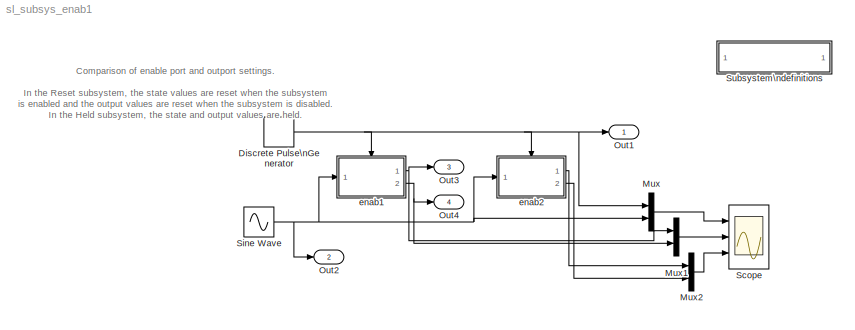
MODEL sl_subsys_enab1
KIND model
BLOCK [SubSystem]  Subsystem\ndefinitions
  MaskDisplay = disp('Subsystem\\ndefinitions')\n\n
  MaskIconFrame = on
  MaskIconOpaque = on
  MaskIconRotate = none
  MaskIconUnits = autoscale
  MinAlgLoopOccurrences = off
  OpenFcn = helpview([matlabroot,'/toolbox/simulink/simdemos/sl_subsys_definitions.html']);
  Ports = []
  PropExecContextAcrossSSBoundary = on
  RTWSystemCode = Auto
  TreatAsAtomicUnit = off
BLOCK [DiscretePulseGenerator] Discrete Pulse\nGenerator
  Period = 20
  Ports = [0, 1]
  PulseWidth = 10
  SampleTime = .25
BLOCK [Mux] Mux
  DisplayOption = bar
  Inputs = 2
  Ports = [2, 1]
BLOCK [Mux] Mux1
  DisplayOption = bar
  Inputs = 2
  Ports = [2, 1]
BLOCK [Mux] Mux2
  DisplayOption = bar
  Inputs = 2
  Ports = [2, 1]
BLOCK [Outport] Out1
  IconDisplay = Port number
BLOCK [Outport] Out2
  IconDisplay = Port number
  Port = 2
BLOCK [Outport] Out3
  IconDisplay = Port number
  Port = 3
BLOCK [Outport] Out4
  IconDisplay = Port number
  Port = 4
BLOCK [Scope] Scope
  DataFormat = StructureWithTime
  NumInputPorts = 3
  Ports = [3]
  TimeRange = 25
  YMax = 5~5~5
  YMin = -5~-5~-5
BLOCK [Sin] Sine Wave
  Amplitude = 2
  Ports = [0, 1]
  SampleTime = .25
  Samples = 20
  SineType = Sample based
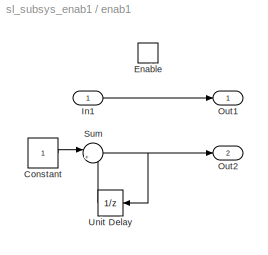
BLOCK [SubSystem] enab1
  MinAlgLoopOccurrences = off
  Ports = [1, 2, 1]
  PropExecContextAcrossSSBoundary = on
  RTWSystemCode = Auto
  TreatAsAtomicUnit = on
BLOCK [Constant] enab1/Constant
BLOCK [EnablePort] enab1/Enable
  AttributesFormatString = States when enabling = %<StatesWhenEnabling>
  Ports = []
  StatesWhenEnabling = reset
BLOCK [Inport] enab1/In1
  IconDisplay = Port number
  LatchInput = off
  Port = 1
BLOCK [Outport] enab1/Out1
  AttributesFormatString = IC=%<InitialOutput>\\nOutput when disabled=%<OutputWhenDisabled>
  IconDisplay = Port number
  InitialOutput = 5
  OutputWhenDisabled = reset
BLOCK [Outport] enab1/Out2
  AttributesFormatString = IC = %<InitialOutput>\\nOutput when disabled = %<OutputWhenDisabled>
  IconDisplay = Port number
  Port = 2
BLOCK [Sum] enab1/Sum
  IconShape = round
  Inputs = |++
  Ports = [2, 1]
BLOCK [UnitDelay] enab1/Unit Delay
  SampleTime = .25
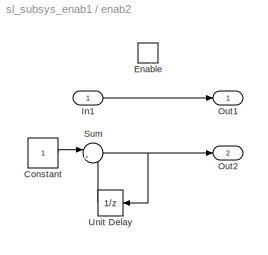
BLOCK [SubSystem] enab2
  MinAlgLoopOccurrences = off
  Ports = [1, 2, 1]
  PropExecContextAcrossSSBoundary = on
  RTWSystemCode = Auto
  TreatAsAtomicUnit = on
BLOCK [Constant] enab2/Constant
BLOCK [EnablePort] enab2/Enable
  AttributesFormatString = States when enabling = %<StatesWhenEnabling>
  Ports = []
BLOCK [Inport] enab2/In1
  IconDisplay = Port number
  LatchInput = off
  Port = 1
BLOCK [Outport] enab2/Out1
  AttributesFormatString = IC=%<InitialOutput>\\nOutput when disabled=%<OutputWhenDisabled>
  IconDisplay = Port number
  InitialOutput = 1
BLOCK [Outport] enab2/Out2
  AttributesFormatString = IC = %<InitialOutput>\\nOutput when disabled = %<OutputWhenDisabled>
  IconDisplay = Port number
  Port = 2
BLOCK [Sum] enab2/Sum
  IconShape = round
  Inputs = |++
  Ports = [2, 1]
BLOCK [UnitDelay] enab2/Unit Delay
  SampleTime = .25
ANNOTATION (root): Comparison of enable port and outport settings.\n\nIn the Reset subsystem, the state values are reset when the subsystem\nis enabled and the output values are reset when the subsystem is disabled.\nIn the Held subsystem, the state and output values are held.
NET Discrete Pulse\nGenerator:1 -> Mux:1, Out1:1, enab1:enable, enab2:enable
LINE Mux1:1 -> Scope:2
LINE Mux2:1 -> Scope:3
LINE Mux:1 -> Scope:1
NET Sine Wave:1 -> Mux:2, Out2:1, enab1:1, enab2:1
LINE enab1/Constant:1 -> enab1/Sum:1
LINE enab1/In1:1 -> enab1/Out1:1
NET enab1/Sum:1 -> enab1/Out2:1, enab1/Unit Delay:1
LINE enab1/Unit Delay:1 -> enab1/Sum:2
NET enab1:1 -> Mux1:1, Out3:1
NET enab1:2 -> Mux1:2, Out4:1
LINE enab2/Constant:1 -> enab2/Sum:1
LINE enab2/In1:1 -> enab2/Out1:1
NET enab2/Sum:1 -> enab2/Out2:1, enab2/Unit Delay:1
LINE enab2/Unit Delay:1 -> enab2/Sum:2
LINE enab2:1 -> Mux2:1
LINE enab2:2 -> Mux2:2
note: NET lines group one-source signal fan-out (src -> all destinations, sorted); 1:1 wires keep LINE
